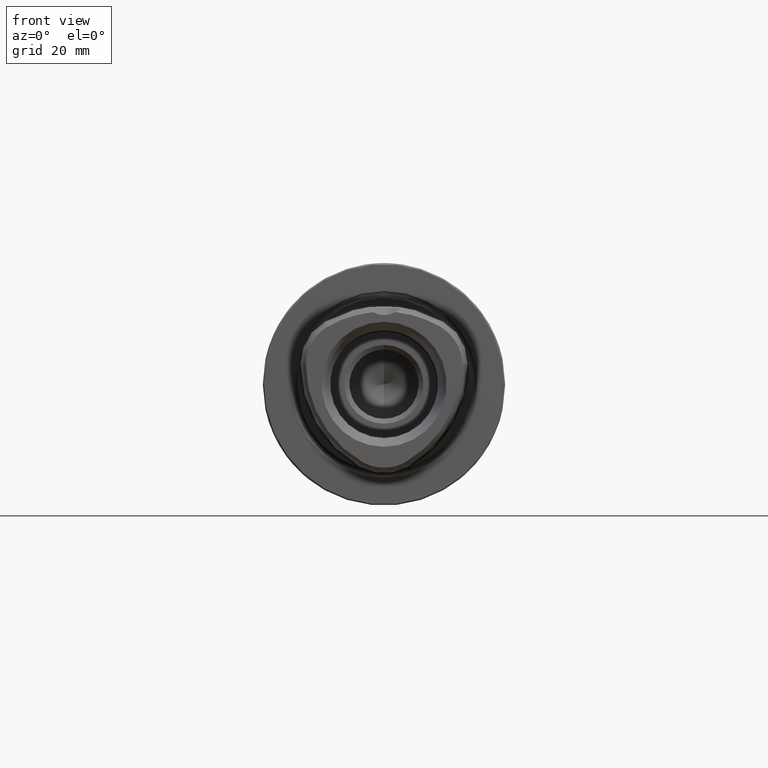
[diagram: clean part render]
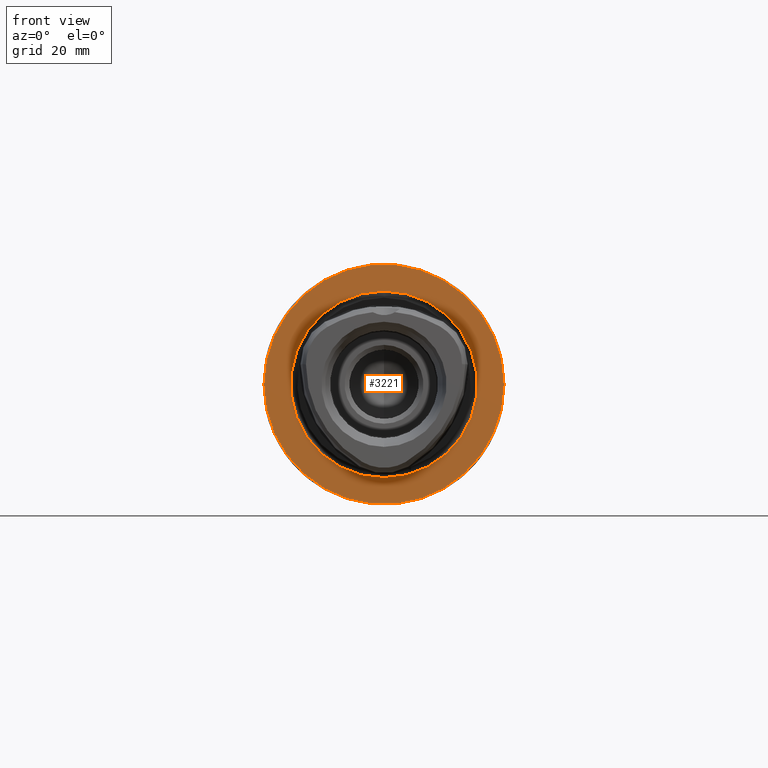
[diagram: same view with one face highlighted and labeled with its STEP entity id]
A machine part, front view. The second image highlights one B-rep face of the part: STEP entity #3221.
In plain terms, the highlighted planar face has unit normal (0, -1, 0).
Its self-contained STEP definition (entity closure, byte-faithful):
#1177=CARTESIAN_POINT('',(-1.936228954946E-13,4.010886343053E-7,
-3.508304757815E-13));
#1178=DIRECTION('',(0.E0,-1.E0,0.E0));
#1179=DIRECTION('',(1.E0,0.E0,1.092294200152E-14));
#1180=AXIS2_PLACEMENT_3D('',#1177,#1178,#1179);
#1182=CARTESIAN_POINT('',(2.540190280342E-13,4.010885525929E-7,
-5.062616992291E-14));
#1183=DIRECTION('',(0.E0,-1.E0,0.E0));
#1184=DIRECTION('',(-1.E0,0.E0,0.E0));
#1185=AXIS2_PLACEMENT_3D('',#1182,#1183,#1184);
#1187=CARTESIAN_POINT('',(0.E0,0.E0,0.E0));
#1188=DIRECTION('',(0.E0,-1.E0,0.E0));
#1189=DIRECTION('',(0.E0,0.E0,-1.E0));
#1190=AXIS2_PLACEMENT_3D('',#1187,#1188,#1189);
#1192=CARTESIAN_POINT('',(0.E0,0.E0,0.E0));
#1193=DIRECTION('',(0.E0,-1.E0,0.E0));
#1194=DIRECTION('',(0.E0,0.E0,1.E0));
#1195=AXIS2_PLACEMENT_3D('',#1192,#1193,#1194);
#1886=CARTESIAN_POINT('',(3.119999665778E1,4.010886343053E-7,
-1.003472184084E-14));
#1887=CARTESIAN_POINT('',(-3.119999665778E1,4.010886343053E-7,0.E0));
#1888=VERTEX_POINT('',#1886);
#1889=VERTEX_POINT('',#1887);
#1894=CARTESIAN_POINT('',(0.E0,0.E0,-2.425E1));
#1895=CARTESIAN_POINT('',(0.E0,0.E0,2.425E1));
#1896=VERTEX_POINT('',#1894);
#1897=VERTEX_POINT('',#1895);
#3206=CARTESIAN_POINT('',(0.E0,0.E0,0.E0));
#3207=DIRECTION('',(0.E0,-1.E0,0.E0));
#3208=DIRECTION('',(-1.E0,0.E0,0.E0));
#3209=AXIS2_PLACEMENT_3D('',#3206,#3207,#3208);
#3210=PLANE('',#3209);
#3212=ORIENTED_EDGE('',*,*,#3211,.F.);
#3214=ORIENTED_EDGE('',*,*,#3213,.F.);
#3215=EDGE_LOOP('',(#3212,#3214));
#3216=FACE_OUTER_BOUND('',#3215,.F.);
#3217=ORIENTED_EDGE('',*,*,#2369,.T.);
#3218=ORIENTED_EDGE('',*,*,#2234,.T.);
#3219=EDGE_LOOP('',(#3217,#3218));
#3220=FACE_BOUND('',#3219,.F.);
#3221=ADVANCED_FACE('',(#3216,#3220),#3210,.T.);
#1181=CIRCLE('',#1180,3.119999665778E1);
#1186=CIRCLE('',#1185,3.119999665778E1);
#1191=CIRCLE('',#1190,2.425E1);
#1196=CIRCLE('',#1195,2.425E1);
#2234=EDGE_CURVE('',#1897,#1896,#1196,.T.);
#2369=EDGE_CURVE('',#1896,#1897,#1191,.T.);
#3211=EDGE_CURVE('',#1888,#1889,#1181,.T.);
#3213=EDGE_CURVE('',#1889,#1888,#1186,.T.);